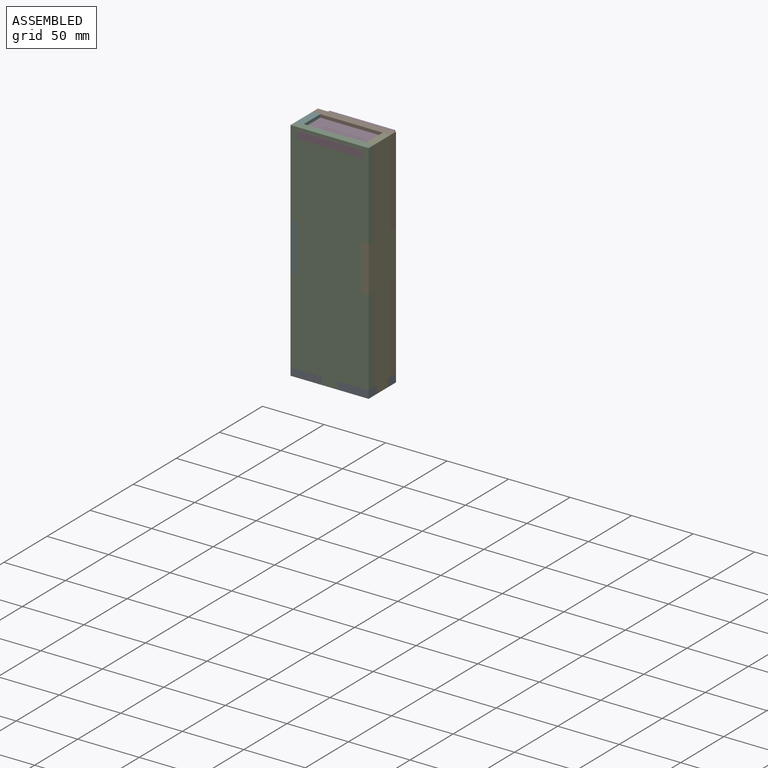
[diagram: assembled view]
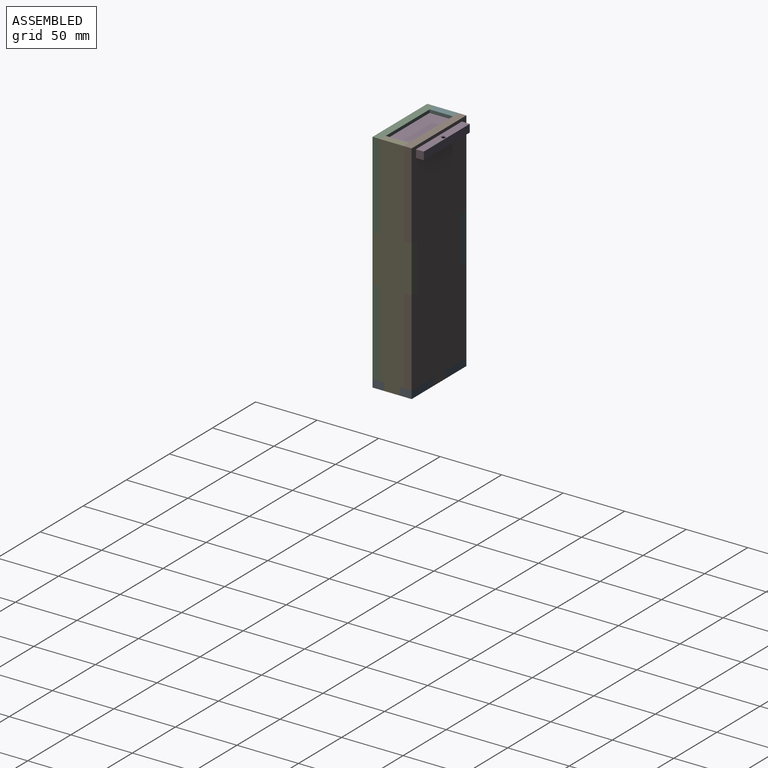
[diagram: assembled view, second angle]
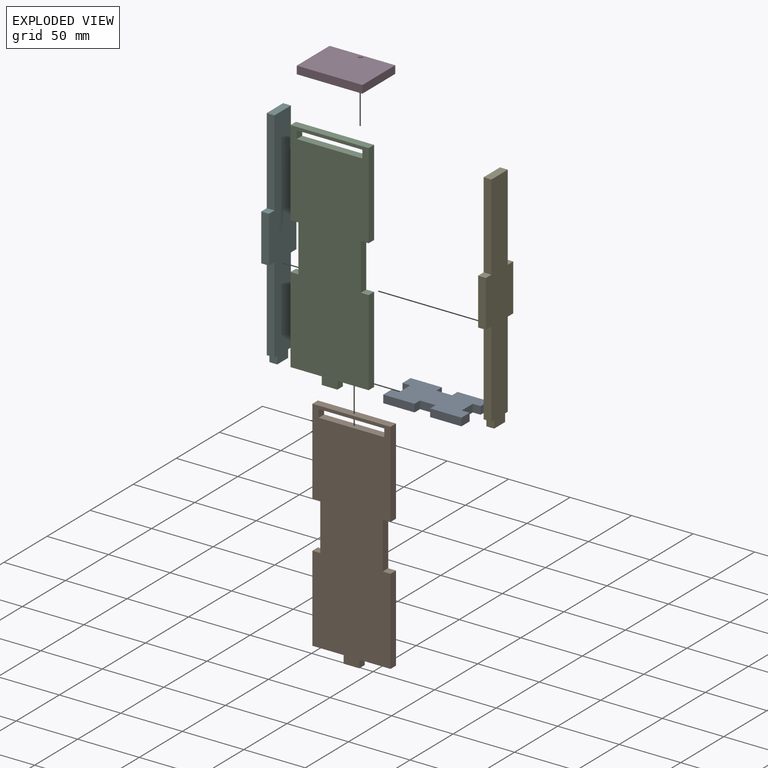
[diagram: exploded view]
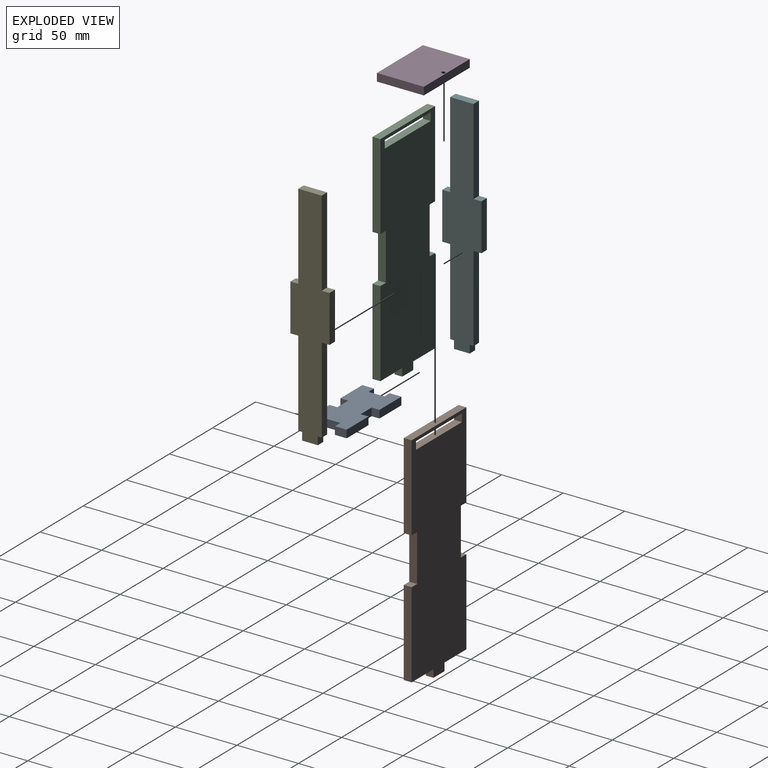
[diagram: exploded view, second angle]
ASSEMBLY  parts=6 mates=5
PART A: 22 faces, bbox 31.8x63.5x6.4 mm
  f0: plane 6.35x6.35mm, normal (0,1,0), area 40.3mm2, adj f1,f19,f20,f21
  f1: plane 25.4x6.35mm, normal (-1,0,0), area 161.3mm2, adj f0,f2,f20,f21
  f2: plane 9.53x6.35mm, normal (0,-1,0), area 60.5mm2, adj f1,f3,f20,f21
  f3: plane 6.35x6.35mm, normal (1,0,0), area 40.3mm2, adj f2,f4,f20,f21
  f4: plane 12.7x6.35mm, normal (0,-1,0), area 80.6mm2, adj f3,f5,f20,f21
  f5: plane 6.35x6.35mm, normal (-1,0,0), area 40.3mm2, adj f4,f6,f20,f21
  f6: plane 9.53x6.35mm, normal (0,-1,0), area 60.5mm2, adj f5,f7,f20,f21
  f7: plane 25.4x6.35mm, normal (1,0,0), area 161.3mm2, adj f6,f8,f20,f21
  f8: plane 6.35x6.35mm, normal (0,1,0), area 40.3mm2, adj f7,f9,f20,f21
  f9: plane 12.7x6.35mm, normal (1,0,0), area 80.6mm2, adj f8,f10,f20,f21
  f10: plane 6.35x6.35mm, normal (0,-1,0), area 40.3mm2, adj f9,f11,f20,f21
  f11: plane 25.4x6.35mm, normal (1,0,0), area 161.3mm2, adj f10,f12,f20,f21
  f12: plane 9.53x6.35mm, normal (0,1,0), area 60.5mm2, adj f11,f13,f20,f21
  f13: plane 6.35x6.35mm, normal (-1,0,0), area 40.3mm2, adj f12,f14,f20,f21
  f14: plane 12.7x6.35mm, normal (0,1,0), area 80.6mm2, adj f13,f15,f20,f21
  f15: plane 6.35x6.35mm, normal (1,0,0), area 40.3mm2, adj f14,f16,f20,f21
  f16: plane 9.53x6.35mm, normal (0,1,0), area 60.5mm2, adj f15,f17,f20,f21
  f17: plane 25.4x6.35mm, normal (-1,0,0), area 161.3mm2, adj f16,f18,f20,f21
  f18: plane 6.35x6.35mm, normal (0,-1,0), area 40.3mm2, adj f17,f19,f20,f21
  f19: plane 12.7x6.35mm, normal (-1,0,0), area 80.6mm2, adj f0,f18,f20,f21
  f20: plane 63.5x31.75mm, normal (0,0,1), area 1693.5mm2, adj f0,f1,f2,f3,f4,f5,f6,f7
  f21: plane 63.5x31.75mm, normal (0,0,-1), area 1693.5mm2, adj f0,f1,f2,f3,f4,f5,f6,f7
PART B: 22 faces, bbox 63.5x6.4x184.2 mm
  f0: plane 69.85x6.35mm, normal (-1,0,0), area 443.5mm2, adj f1,f19,f20,f21
  f1: plane 6.35x6.35mm, normal (0,0,-1), area 40.3mm2, adj f0,f2,f20,f21
  f2: plane 38.1x6.35mm, normal (-1,0,0), area 241.9mm2, adj f1,f3,f20,f21
  f3: plane 6.35x6.35mm, normal (0,0,1), area 40.3mm2, adj f2,f4,f20,f21
  f4: plane 69.85x6.35mm, normal (-1,0,0), area 443.5mm2, adj f3,f5,f20,f21
  f5: plane 25.4x6.35mm, normal (0,0,-1), area 161.3mm2, adj f4,f6,f20,f21
  f6: plane 6.35x6.35mm, normal (-1,0,0), area 40.3mm2, adj f5,f7,f20,f21
  f7: plane 12.7x6.35mm, normal (0,0,-1), area 80.6mm2, adj f6,f8,f20,f21
  f8: plane 6.35x6.35mm, normal (1,0,0), area 40.3mm2, adj f7,f9,f20,f21
  f9: plane 25.4x6.35mm, normal (0,0,-1), area 161.3mm2, adj f8,f10,f20,f21
  f10: plane 69.85x6.35mm, normal (1,0,0), area 443.5mm2, adj f9,f11,f20,f21
  f11: plane 6.35x6.35mm, normal (0,0,1), area 40.3mm2, adj f10,f12,f20,f21
  f12: plane 38.1x6.35mm, normal (1,0,0), area 241.9mm2, adj f11,f13,f20,f21
  f13: plane 6.35x6.35mm, normal (0,0,-1), area 40.3mm2, adj f12,f14,f20,f21
  f14: plane 69.85x6.35mm, normal (1,0,0), area 443.5mm2, adj f13,f19,f20,f21
  f15: plane 6.41x6.35mm, normal (1,0,0), area 40.7mm2, adj f16,f18,f20,f21
  f16: plane 53.34x6.35mm, normal (0,0,-1), area 338.7mm2, adj f15,f17,f20,f21
  f17: plane 6.41x6.35mm, normal (-1,0,0), area 40.7mm2, adj f16,f18,f20,f21
  f18: plane 53.34x6.35mm, normal (0,0,1), area 338.7mm2, adj f15,f17,f20,f21
  f19: plane 63.5x6.35mm, normal (0,0,1), area 403.2mm2, adj f0,f14,f20,f21
  f20: plane 184.15x63.5mm, normal (0,-1,0), area 10545mm2, adj f0,f1,f2,f3,f4,f5,f6,f7
  f21: plane 184.15x63.5mm, normal (0,1,0), area 10545mm2, adj f0,f1,f2,f3,f4,f5,f6,f7
PART C: same geometry as B
PART D: 9 faces, bbox 53.3x39.1x6.4 mm
  f0: plane 53.34x6.35mm, normal (0,1,0), area 338.7mm2, adj f1,f4,f5,f6,f7,f8
  f1: plane 38.1x6.35mm, normal (-1,0,0), area 241.9mm2, adj f0,f2,f5,f6
  f2: plane 53.34x6.35mm, normal (0,-1,0), area 338.7mm2, adj f1,f4,f5,f6
  f3: cylinder r=1.59mm len=4.6mm, axis (0,0,-1), area 45.9mm2, adj f7,f8
  f4: plane 38.1x6.35mm, normal (1,0,0), area 241.9mm2, adj f0,f2,f5,f6
  f5: plane 53.34x38.1mm, normal (0,0,1), area 2013.3mm2, adj f0,f1,f2,f4,f8
  f6: plane 53.34x38.1mm, normal (0,0,-1), area 2013.3mm2, adj f0,f1,f2,f4,f7
  f7: torus R=2.46mm, axis (0,0,1), area 16.3mm2, adj f0,f3,f6
  f8: torus R=2.46mm, axis (0,0,1), area 16.3mm2, adj f0,f3,f5
PART E: 18 faces, bbox 6.4x31.8x184.2 mm
  f0: plane 69.85x6.35mm, normal (0,-1,0), area 443.5mm2, adj f1,f15,f16,f17
  f1: plane 6.35x6.35mm, normal (0,0,1), area 40.3mm2, adj f0,f2,f16,f17
  f2: plane 38.1x6.35mm, normal (0,-1,0), area 241.9mm2, adj f1,f3,f16,f17
  f3: plane 6.35x6.35mm, normal (0,0,-1), area 40.3mm2, adj f2,f4,f16,f17
  f4: plane 69.85x6.35mm, normal (0,-1,0), area 443.5mm2, adj f3,f5,f16,f17
  f5: plane 6.35x3.18mm, normal (0,0,-1), area 20.2mm2, adj f4,f6,f16,f17
  f6: plane 6.35x6.35mm, normal (0,-1,0), area 40.3mm2, adj f5,f7,f16,f17
  f7: plane 12.7x6.35mm, normal (0,0,-1), area 80.6mm2, adj f6,f8,f16,f17
  f8: plane 6.35x6.35mm, normal (0,1,0), area 40.3mm2, adj f7,f9,f16,f17
  f9: plane 6.35x3.18mm, normal (0,0,-1), area 20.2mm2, adj f8,f10,f16,f17
  f10: plane 69.85x6.35mm, normal (0,1,0), area 443.5mm2, adj f9,f11,f16,f17
  f11: plane 6.35x6.35mm, normal (0,0,-1), area 40.3mm2, adj f10,f12,f16,f17
  f12: plane 38.1x6.35mm, normal (0,1,0), area 241.9mm2, adj f11,f13,f16,f17
  f13: plane 6.35x6.35mm, normal (0,0,1), area 40.3mm2, adj f12,f14,f16,f17
  f14: plane 69.85x6.35mm, normal (0,1,0), area 443.5mm2, adj f13,f15,f16,f17
  f15: plane 19.05x6.35mm, normal (0,0,1), area 121mm2, adj f0,f14,f16,f17
  f16: plane 184.15x31.75mm, normal (1,0,0), area 3951.6mm2, adj f0,f1,f2,f3,f4,f5,f6,f7
  f17: plane 184.15x31.75mm, normal (-1,0,0), area 3951.6mm2, adj f0,f1,f2,f3,f4,f5,f6,f7
PART F: same geometry as E
PLACE A rot(axis=(0,0,1),90deg) t=(11.48,-7.41,-94.4)mm
PLACE B at identity
PLACE C t=(0,-25.4,0)mm
PLACE D t=(-3.23,-5.37,80.79)mm
PLACE E t=(12.28,20.25,-11.85)mm
PLACE F t=(-44.87,20.25,-11.85)mm
MATE fastened D.f6 <-> C.f18  axis (0,0,-1) through (-13.12,-31.75,80.79)mm
MATE fastened F.f11 <-> B.f3  axis (0,0,-1) through (-41.69,-3.18,-18.2)mm
MATE fastened E.f11 <-> B.f11  axis (0,0,-1) through (15.46,-3.18,-18.2)mm
MATE fastened A.f9 <-> B.f20  axis (0,1,0) through (-13.12,-6.35,-94.4)mm
MATE fastened C.f1 <-> F.f1  axis (0,0,-1) through (-41.69,-28.58,19.9)mm
